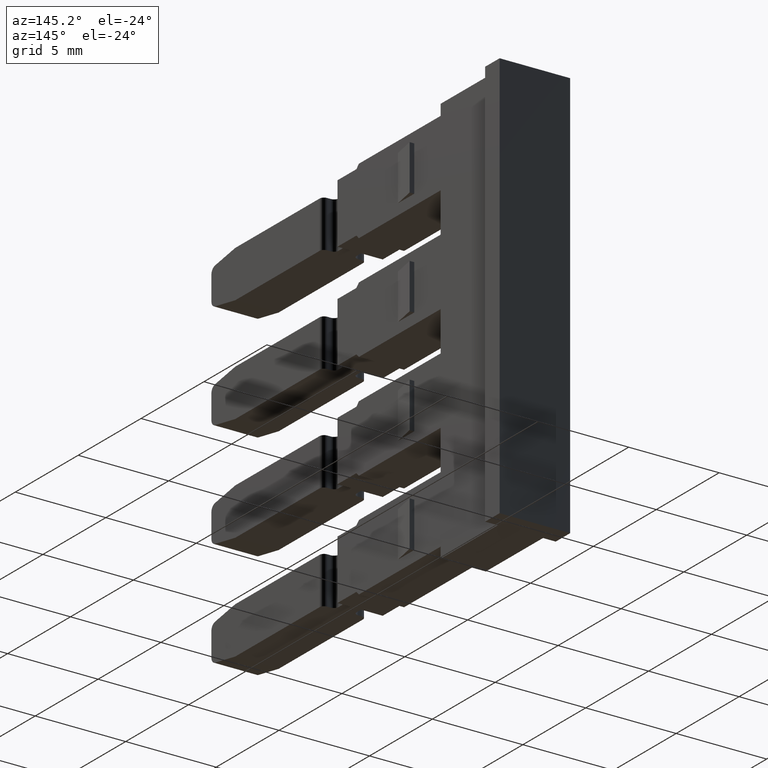
[diagram: clean part render]
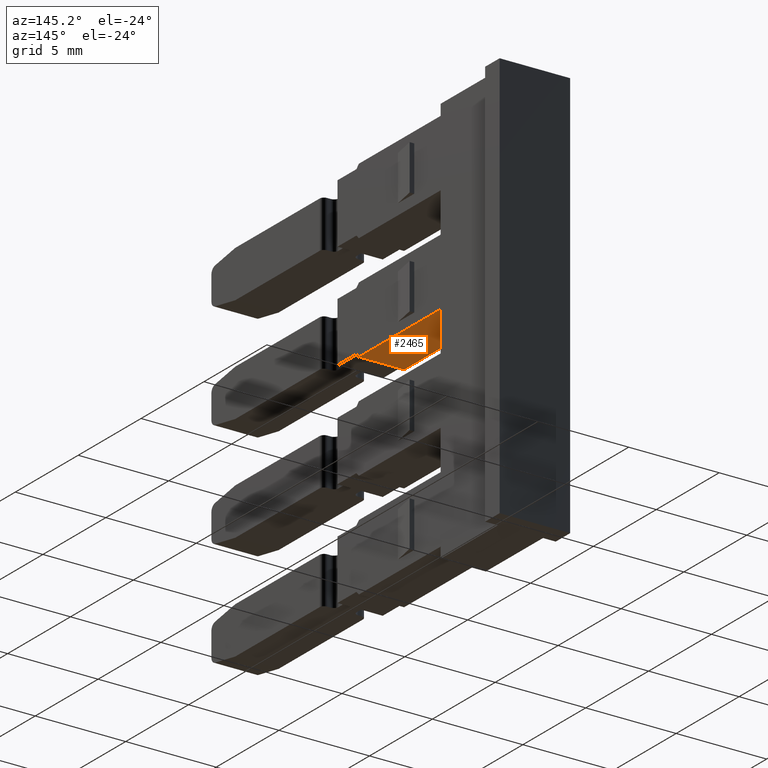
[diagram: same view with one face highlighted and labeled with its STEP entity id]
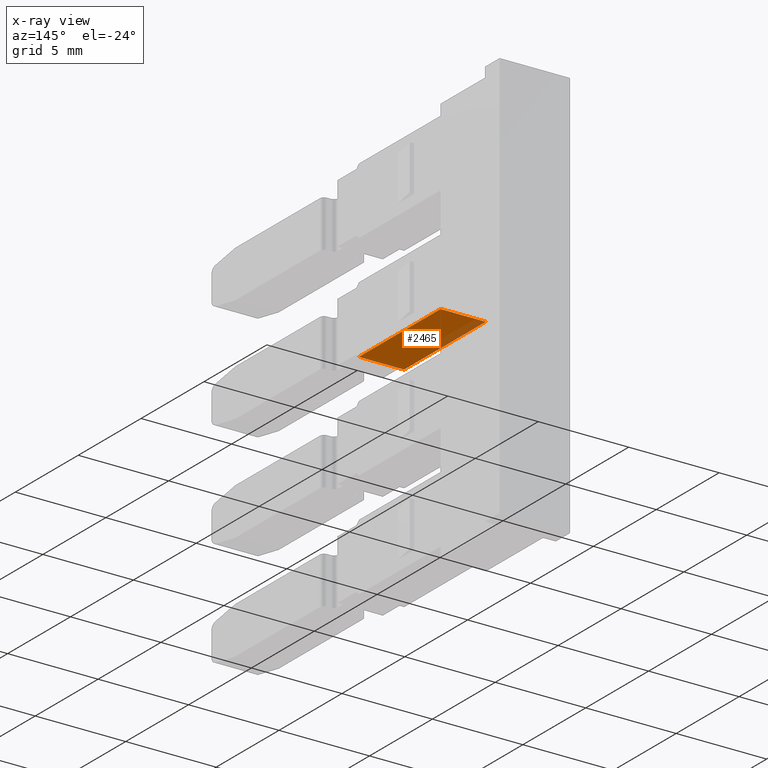
[diagram: x-ray of the same camera — body ghosted, the highlighted face saturated]
A machine part, auxiliary view. The second image highlights one B-rep face of the part: STEP entity #2465.
The next image is the same camera in x-ray: the body ghosted, the highlighted face saturated — about 11% of this face is hidden behind the body in this view.
In plain terms, the highlighted planar face has unit normal (-0, -0, -1).
Its self-contained STEP definition (entity closure, byte-faithful):
#280 = EDGE_LOOP ( 'NONE', ( #4922, #4928, #4962, #4921 ) ) ;
#438 = LINE ( 'NONE', #464, #1658 ) ;
#464 = CARTESIAN_POINT ( 'NONE',  ( 1516.460390188475000, 1003.994679537513400, -87.24999999998709700 ) ) ;
#470 = DIRECTION ( 'NONE',  ( 1.000000000000000000, -1.591874026890570400E-028, -1.715124499443520100E-015 ) ) ;
#631 = LINE ( 'NONE', #644, #1700 ) ;
#644 = CARTESIAN_POINT ( 'NONE',  ( 1459.267071211366600, 1007.642679537518000, -87.24999999998702500 ) ) ;
#647 = DIRECTION ( 'NONE',  ( -1.280238727656624100E-014, -1.000000000000000000, 0.0000000000000000000 ) ) ;
#887 = LINE ( 'NONE', #954, #1800 ) ;
#945 = DIRECTION ( 'NONE',  ( -1.000000000000000000, 1.591874026890570400E-028, 1.715124499443520100E-015 ) ) ;
#954 = CARTESIAN_POINT ( 'NONE',  ( 1516.460390188475000, 997.4946795375177500, -87.24999999998650000 ) ) ;
#1515 = AXIS2_PLACEMENT_3D ( 'NONE', #2836, #2821, #2837 ) ;
#1658 = VECTOR ( 'NONE', #470, 1000.000000000000000 ) ;
#1700 = VECTOR ( 'NONE', #647, 1000.000000000000000 ) ;
#1800 = VECTOR ( 'NONE', #945, 1000.000000000000000 ) ;
#1876 = VECTOR ( 'NONE', #3832, 1000.000000000000000 ) ;
#1914 = EDGE_CURVE ( 'NONE', #5233, #5253, #438, .T. ) ;
#1967 = EDGE_CURVE ( 'NONE', #5253, #5301, #631, .T. ) ;
#2073 = EDGE_CURVE ( 'NONE', #5301, #5353, #887, .T. ) ;
#2126 = EDGE_CURVE ( 'NONE', #5353, #5233, #3820, .T. ) ;
#2465 = ADVANCED_FACE ( 'NONE', ( #2855 ), #2849, .T. ) ;
#2821 = DIRECTION ( 'NONE',  ( -1.715124499443520100E-015, -9.281390519504917400E-014, -1.000000000000000000 ) ) ;
#2836 = CARTESIAN_POINT ( 'NONE',  ( 1516.460390188475000, 997.4946795375182100, -87.24999999998650000 ) ) ;
#2837 = DIRECTION ( 'NONE',  ( 0.0000000000000000000, 1.000000000000000000, -9.281390519504917400E-014 ) ) ;
#2849 = PLANE ( 'NONE',  #1515 ) ;
#2855 = FACE_OUTER_BOUND ( 'NONE', #280, .T. ) ;
#3348 = CARTESIAN_POINT ( 'NONE',  ( 1456.769071211365800, 1003.994679537513400, -87.24999999998694000 ) ) ;
#3410 = CARTESIAN_POINT ( 'NONE',  ( 1459.267071211366600, 1003.994679537511200, -87.24999999998686900 ) ) ;
#3458 = CARTESIAN_POINT ( 'NONE',  ( 1459.267071211366300, 997.4946795375173000, -87.24999999998745200 ) ) ;
#3514 = CARTESIAN_POINT ( 'NONE',  ( 1456.769071211365800, 997.4946795375173000, -87.24999999998752300 ) ) ;
#3820 = LINE ( 'NONE', #3835, #1876 ) ;
#3832 = DIRECTION ( 'NONE',  ( 0.0000000000000000000, 1.000000000000000000, -9.281390519504917400E-014 ) ) ;
#3835 = CARTESIAN_POINT ( 'NONE',  ( 1456.769071211365800, 997.4946795375182100, -87.24999999998641400 ) ) ;
#4921 = ORIENTED_EDGE ( 'NONE', *, *, #1967, .T. ) ;
#4922 = ORIENTED_EDGE ( 'NONE', *, *, #2073, .T. ) ;
#4928 = ORIENTED_EDGE ( 'NONE', *, *, #2126, .T. ) ;
#4962 = ORIENTED_EDGE ( 'NONE', *, *, #1914, .T. ) ;
#5233 = VERTEX_POINT ( 'NONE', #3348 ) ;
#5253 = VERTEX_POINT ( 'NONE', #3410 ) ;
#5301 = VERTEX_POINT ( 'NONE', #3458 ) ;
#5353 = VERTEX_POINT ( 'NONE', #3514 ) ;